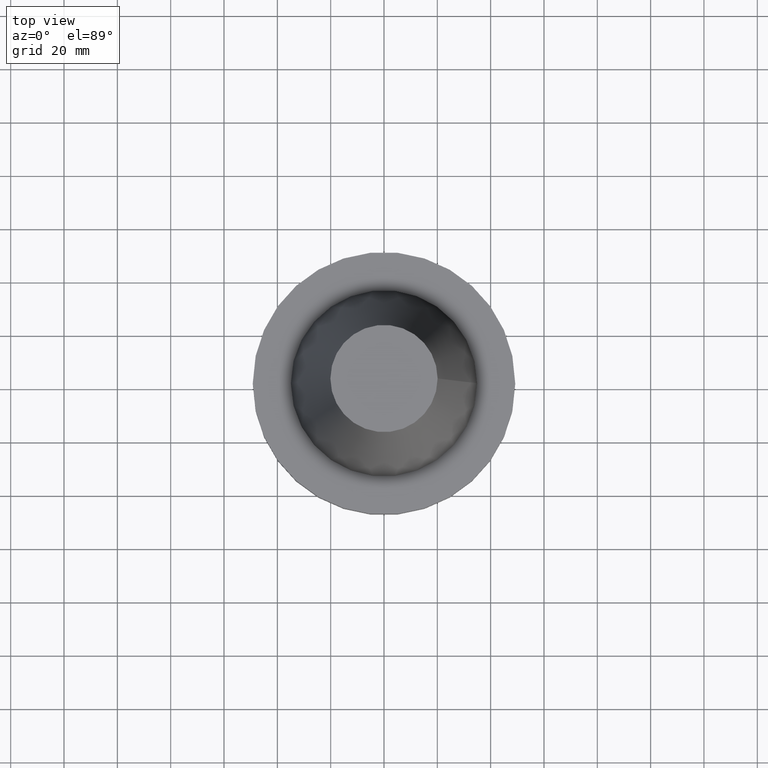
[diagram: clean part render]
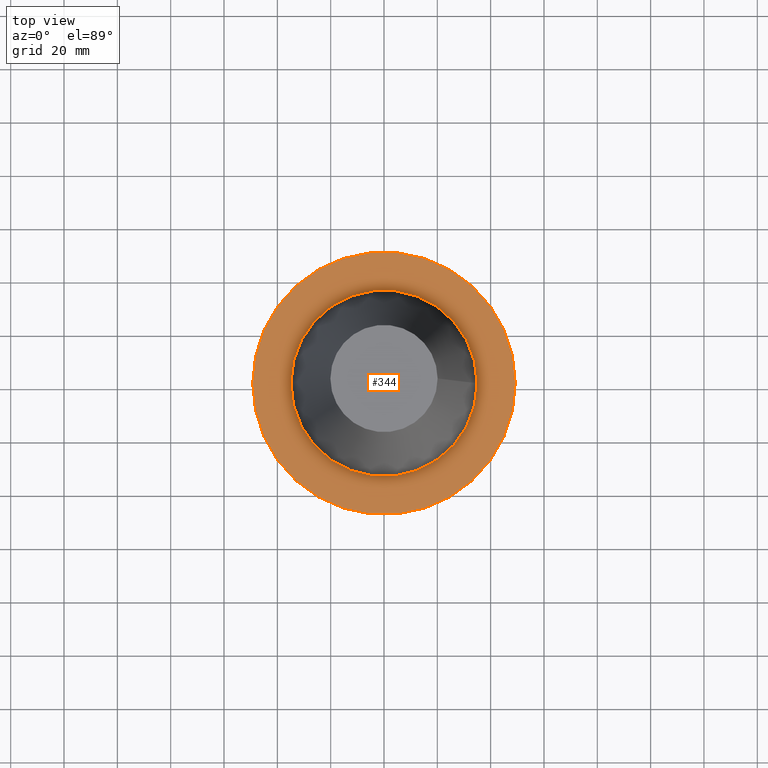
[diagram: same view with one face highlighted and labeled with its STEP entity id]
A machine part, top view. The second image highlights one B-rep face of the part: STEP entity #344.
In plain terms, the highlighted planar face has unit normal (0, 0, -1).
Its self-contained STEP definition (entity closure, byte-faithful):
#27 = CARTESIAN_POINT ( 'NONE',  ( 49.21499999999999631, 0.000000000000000000, -1.499999999999987566 ) ) ;
#44 = DIRECTION ( 'NONE',  ( -0.000000000000000000, -0.000000000000000000, 1.000000000000000000 ) ) ;
#46 = EDGE_CURVE ( 'NONE', #86, #86, #275, .T. ) ;
#58 = ORIENTED_EDGE ( 'NONE', *, *, #46, .F. ) ;
#68 = CARTESIAN_POINT ( 'NONE',  ( 0.000000000000000000, 0.000000000000000000, -1.499999999999987566 ) ) ;
#86 = VERTEX_POINT ( 'NONE', #177 ) ;
#88 = EDGE_CURVE ( 'NONE', #297, #297, #216, .T. ) ;
#91 = AXIS2_PLACEMENT_3D ( 'NONE', #68, #350, #191 ) ;
#116 = AXIS2_PLACEMENT_3D ( 'NONE', #379, #44, #164 ) ;
#121 = EDGE_LOOP ( 'NONE', ( #124 ) ) ;
#124 = ORIENTED_EDGE ( 'NONE', *, *, #88, .T. ) ;
#164 = DIRECTION ( 'NONE',  ( 1.000000000000000000, 0.000000000000000000, 0.000000000000000000 ) ) ;
#171 = FACE_BOUND ( 'NONE', #371, .T. ) ;
#177 = CARTESIAN_POINT ( 'NONE',  ( 34.92499999999999005, 0.000000000000000000, -1.499999999999987566 ) ) ;
#191 = DIRECTION ( 'NONE',  ( 1.000000000000000000, 0.000000000000000000, 0.000000000000000000 ) ) ;
#216 = CIRCLE ( 'NONE', #116, 49.21499999999999631 ) ;
#231 = DIRECTION ( 'NONE',  ( -1.000000000000000000, 0.000000000000000000, -0.000000000000000000 ) ) ;
#232 = AXIS2_PLACEMENT_3D ( 'NONE', #354, #293, #231 ) ;
#275 = CIRCLE ( 'NONE', #91, 34.92499999999999005 ) ;
#293 = DIRECTION ( 'NONE',  ( 0.000000000000000000, 0.000000000000000000, -1.000000000000000000 ) ) ;
#297 = VERTEX_POINT ( 'NONE', #27 ) ;
#325 = FACE_OUTER_BOUND ( 'NONE', #121, .T. ) ;
#344 = ADVANCED_FACE ( 'NONE', ( #171, #325 ), #362, .F. ) ;
#350 = DIRECTION ( 'NONE',  ( -0.000000000000000000, -0.000000000000000000, 1.000000000000000000 ) ) ;
#354 = CARTESIAN_POINT ( 'NONE',  ( 0.000000000000000000, 49.21499999999999631, -1.499999999999992895 ) ) ;
#362 = PLANE ( 'NONE',  #232 ) ;
#371 = EDGE_LOOP ( 'NONE', ( #58 ) ) ;
#379 = CARTESIAN_POINT ( 'NONE',  ( 0.000000000000000000, 0.000000000000000000, -1.499999999999987566 ) ) ;